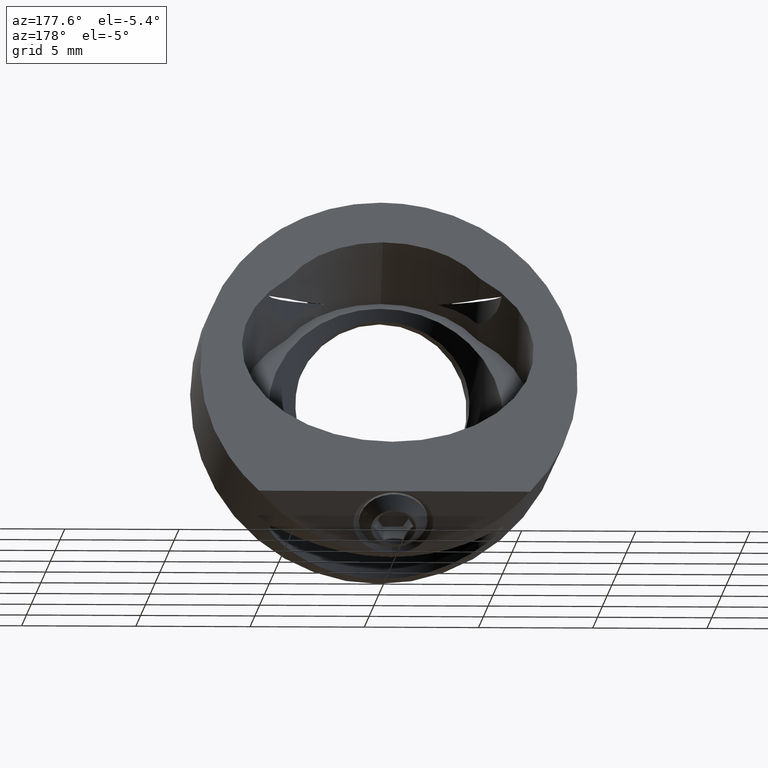
[diagram: clean part render]
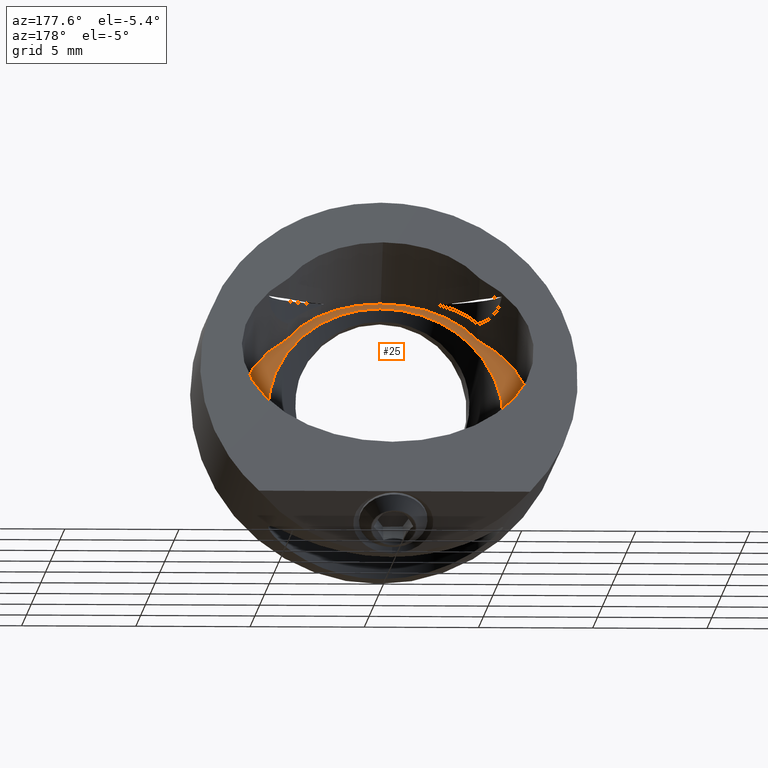
[diagram: same view with one face highlighted and labeled with its STEP entity id]
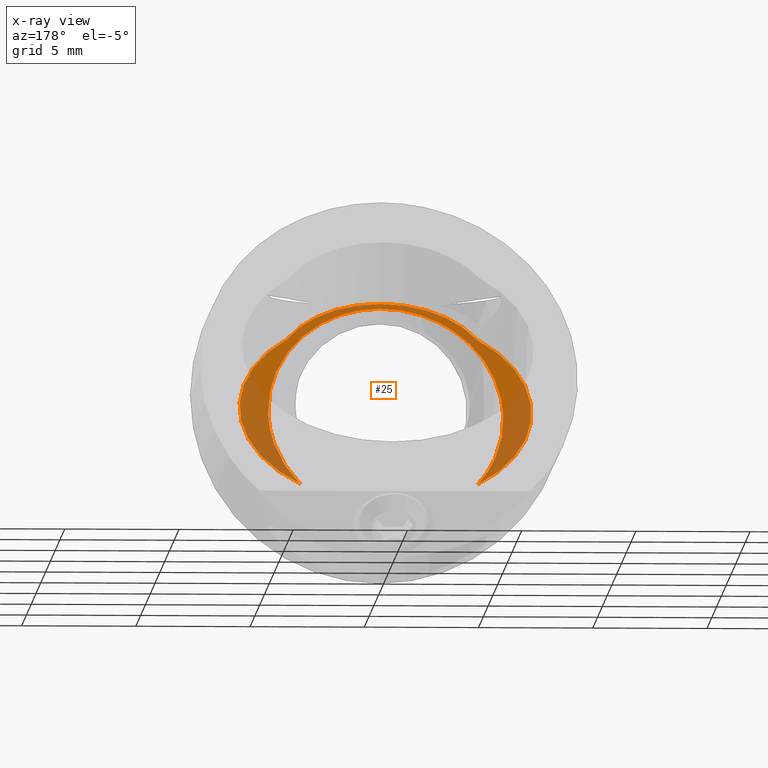
[diagram: x-ray of the same camera — body ghosted, the highlighted face saturated]
A machine part, auxiliary view. The second image highlights one B-rep face of the part: STEP entity #25.
The next image is the same camera in x-ray: the body ghosted, the highlighted face saturated — about 52% of this face is hidden behind the body in this view.
In plain terms, the highlighted planar face has unit normal (0, 0.7071, 0.7071).
Its self-contained STEP definition (entity closure, byte-faithful):
#3 = ORIENTED_EDGE ( 'NONE', *, *, #641, .T. ) ;
#15 = CIRCLE ( 'NONE', #1135, 4.763000000000000789 ) ;
#25 = ADVANCED_FACE ( 'NONE', ( #624 ), #1668, .T. ) ;
#31 = CARTESIAN_POINT ( 'NONE',  ( 5.143500000000001293, 7.366000000000000547, -1.520747468305902128 ) ) ;
#52 = CARTESIAN_POINT ( 'NONE',  ( 4.708445635130565243, 9.783243845883314194, -3.937991314189238867 ) ) ;
#57 = CARTESIAN_POINT ( 'NONE',  ( -3.892938429126241662, 10.72763987319167178, -4.882387341497609334 ) ) ;
#65 = ORIENTED_EDGE ( 'NONE', *, *, #1479, .T. ) ;
#68 = CIRCLE ( 'NONE', #549, 4.763000000000000789 ) ;
#89 = AXIS2_PLACEMENT_3D ( 'NONE', #1028, #374, #1548 ) ;
#115 = CIRCLE ( 'NONE', #769, 6.387999999999999012 ) ;
#144 = CARTESIAN_POINT ( 'NONE',  ( -5.143500000000001293, 7.365999999999999659, -1.520747468305901240 ) ) ;
#159 = CARTESIAN_POINT ( 'NONE',  ( 7.815978732540471011E-16, 1.989399297430420432, 3.855853234263731277 ) ) ;
#166 =( BOUNDED_CURVE ( )  B_SPLINE_CURVE ( 3, ( #31, #1321, #1043, #144 ),
 .UNSPECIFIED., .F., .T. ) 
 B_SPLINE_CURVE_WITH_KNOTS ( ( 4, 4 ),
 ( 1.570796326794896780, 4.712388980384689674 ),
 .UNSPECIFIED. ) 
 CURVE ( )  GEOMETRIC_REPRESENTATION_ITEM ( )  RATIONAL_B_SPLINE_CURVE ( ( 1.000000000000000000, 0.3333333333333333703, 0.3333333333333333703, 1.000000000000000000 ) ) 
 REPRESENTATION_ITEM ( '' )  );
#168 = ORIENTED_EDGE ( 'NONE', *, *, #1004, .T. ) ;
#172 = DIRECTION ( 'NONE',  ( 0.000000000000000000, 0.7071067811865511255, 0.7071067811865440200 ) ) ;
#187 = ORIENTED_EDGE ( 'NONE', *, *, #583, .T. ) ;
#265 = CARTESIAN_POINT ( 'NONE',  ( 3.892938429126236777, 10.72763987319167711, -4.882387341497614663 ) ) ;
#268 = VERTEX_POINT ( 'NONE', #457 ) ;
#303 = EDGE_CURVE ( 'NONE', #837, #586, #115, .T. ) ;
#350 = CARTESIAN_POINT ( 'NONE',  ( 4.161951651678083230, 3.719617622615964958, 2.125634909078168988 ) ) ;
#374 = DIRECTION ( 'NONE',  ( 0.000000000000000000, 0.7071067811865511255, 0.7071067811865440200 ) ) ;
#398 = DIRECTION ( 'NONE',  ( 0.000000000000000000, 0.7071067811865511255, 0.7071067811865440200 ) ) ;
#417 = CARTESIAN_POINT ( 'NONE',  ( -5.143500000000001293, 7.365999999999999659, -1.520747468305901240 ) ) ;
#438 = CARTESIAN_POINT ( 'NONE',  ( 5.143500000000003070, 8.613772358822235020, -2.768519827128147703 ) ) ;
#457 = CARTESIAN_POINT ( 'NONE',  ( 5.143500000000001293, 7.366000000000000547, -1.520747468305902128 ) ) ;
#529 = DIRECTION ( 'NONE',  ( 0.000000000000000000, 0.7071067811865511255, 0.7071067811865440200 ) ) ;
#530 = CARTESIAN_POINT ( 'NONE',  ( 3.892938429126236777, 10.72763987319167711, -4.882387341497614663 ) ) ;
#549 = AXIS2_PLACEMENT_3D ( 'NONE', #1066, #172, #917 ) ;
#583 = EDGE_CURVE ( 'NONE', #586, #1115, #68, .T. ) ;
#586 = VERTEX_POINT ( 'NONE', #1207 ) ;
#624 = FACE_OUTER_BOUND ( 'NONE', #931, .T. ) ;
#641 = EDGE_CURVE ( 'NONE', #1245, #1181, #1621, .T. ) ;
#644 = CARTESIAN_POINT ( 'NONE',  ( 7.815978732540471011E-16, 5.357348896221929557, 0.4879036354721883462 ) ) ;
#671 = CARTESIAN_POINT ( 'NONE',  ( 5.143500000000001293, 7.366000000000000547, -1.520747468305902128 ) ) ;
#673 =( BOUNDED_CURVE ( )  B_SPLINE_CURVE ( 3, ( #1610, #685, #712, #57 ),
 .UNSPECIFIED., .F., .T. ) 
 B_SPLINE_CURVE_WITH_KNOTS ( ( 4, 4 ),
 ( 4.712388980384689674, 5.424681348296187089 ),
 .UNSPECIFIED. ) 
 CURVE ( )  GEOMETRIC_REPRESENTATION_ITEM ( )  RATIONAL_B_SPLINE_CURVE ( ( 1.000000000000000000, 0.9581649803307273894, 0.9581649803307273894, 1.000000000000000000 ) ) 
 REPRESENTATION_ITEM ( '' )  );
#683 =( BOUNDED_CURVE ( )  B_SPLINE_CURVE ( 3, ( #530, #52, #438, #671 ),
 .UNSPECIFIED., .F., .F. ) 
 B_SPLINE_CURVE_WITH_KNOTS ( ( 4, 4 ),
 ( 0.8585039588833978108, 1.570796326794896780 ),
 .UNSPECIFIED. ) 
 CURVE ( )  GEOMETRIC_REPRESENTATION_ITEM ( )  RATIONAL_B_SPLINE_CURVE ( ( 1.000000000000000000, 0.9581649803307270563, 0.9581649803307270563, 1.000000000000000000 ) ) 
 REPRESENTATION_ITEM ( '' )  );
#685 = CARTESIAN_POINT ( 'NONE',  ( -5.143500000000002181, 8.613772358822231467, -2.768519827128145039 ) ) ;
#701 = CARTESIAN_POINT ( 'NONE',  ( 2.649184241953760576E-15, 7.146329052623886291, -1.301076520929786318 ) ) ;
#709 = DIRECTION ( 'NONE',  ( 0.000000000000000000, 0.7071067811865511255, 0.7071067811865440200 ) ) ;
#712 = CARTESIAN_POINT ( 'NONE',  ( -4.708445635130567020, 9.783243845883310641, -3.937991314189233982 ) ) ;
#769 = AXIS2_PLACEMENT_3D ( 'NONE', #701, #709, #1252 ) ;
#830 = ORIENTED_EDGE ( 'NONE', *, *, #892, .T. ) ;
#837 = VERTEX_POINT ( 'NONE', #933 ) ;
#892 = EDGE_CURVE ( 'NONE', #1115, #1245, #15, .T. ) ;
#896 = EDGE_CURVE ( 'NONE', #268, #902, #166, .T. ) ;
#902 = VERTEX_POINT ( 'NONE', #417 ) ;
#917 = DIRECTION ( 'NONE',  ( 0.000000000000000000, -0.7071067811865439090, 0.7071067811865511255 ) ) ;
#931 = EDGE_LOOP ( 'NONE', ( #3, #65, #1618, #168, #1122, #187, #830 ) ) ;
#933 = CARTESIAN_POINT ( 'NONE',  ( -3.892938429126241662, 10.72763987319167178, -4.882387341497609334 ) ) ;
#955 = DIRECTION ( 'NONE',  ( 0.000000000000000000, -0.7071067811865439090, 0.7071067811865511255 ) ) ;
#957 = CARTESIAN_POINT ( 'NONE',  ( 2.649184241953760576E-15, 7.146329052623886291, -1.301076520929786318 ) ) ;
#969 = AXIS2_PLACEMENT_3D ( 'NONE', #957, #529, #1350 ) ;
#1004 = EDGE_CURVE ( 'NONE', #902, #837, #673, .T. ) ;
#1028 = CARTESIAN_POINT ( 'NONE',  ( 1.715391057603903888E-15, 6.251838974422907924, -0.4065864427287989580 ) ) ;
#1043 = CARTESIAN_POINT ( 'NONE',  ( -5.143500000000000405, -2.921000000000002483, 8.766252531694203043 ) ) ;
#1066 = CARTESIAN_POINT ( 'NONE',  ( 7.815978732540471011E-16, 5.357348896221929557, 0.4879036354721883462 ) ) ;
#1115 = VERTEX_POINT ( 'NONE', #159 ) ;
#1122 = ORIENTED_EDGE ( 'NONE', *, *, #303, .T. ) ;
#1135 = AXIS2_PLACEMENT_3D ( 'NONE', #644, #398, #955 ) ;
#1181 = VERTEX_POINT ( 'NONE', #265 ) ;
#1207 = CARTESIAN_POINT ( 'NONE',  ( -4.161951651678085895, 3.719617622615968511, 2.125634909078165435 ) ) ;
#1245 = VERTEX_POINT ( 'NONE', #350 ) ;
#1252 = DIRECTION ( 'NONE',  ( 0.000000000000000000, -0.7071067811865441310, 0.7071067811865510144 ) ) ;
#1321 = CARTESIAN_POINT ( 'NONE',  ( 5.143500000000000405, -2.921000000000002483, 8.766252531694203043 ) ) ;
#1350 = DIRECTION ( 'NONE',  ( 0.000000000000000000, -0.7071067811865441310, 0.7071067811865510144 ) ) ;
#1479 = EDGE_CURVE ( 'NONE', #1181, #268, #683, .T. ) ;
#1548 = DIRECTION ( 'NONE',  ( 0.000000000000000000, -0.7071067811865440200, 0.7071067811865511255 ) ) ;
#1610 = CARTESIAN_POINT ( 'NONE',  ( -5.143500000000001293, 7.365999999999999659, -1.520747468305901240 ) ) ;
#1618 = ORIENTED_EDGE ( 'NONE', *, *, #896, .T. ) ;
#1621 = CIRCLE ( 'NONE', #969, 6.387999999999999012 ) ;
#1668 = PLANE ( 'NONE',  #89 ) ;